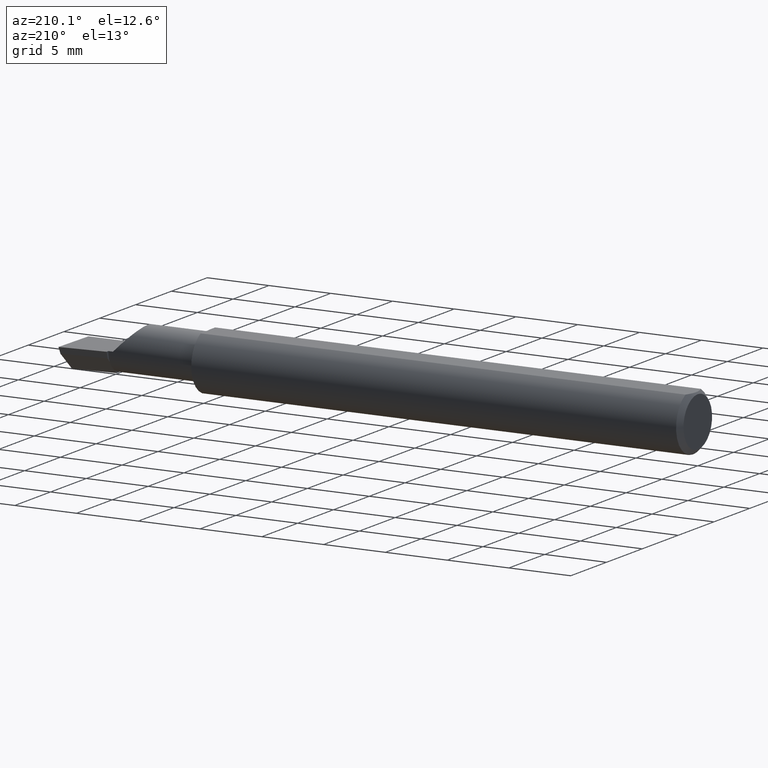
[diagram: clean part render]
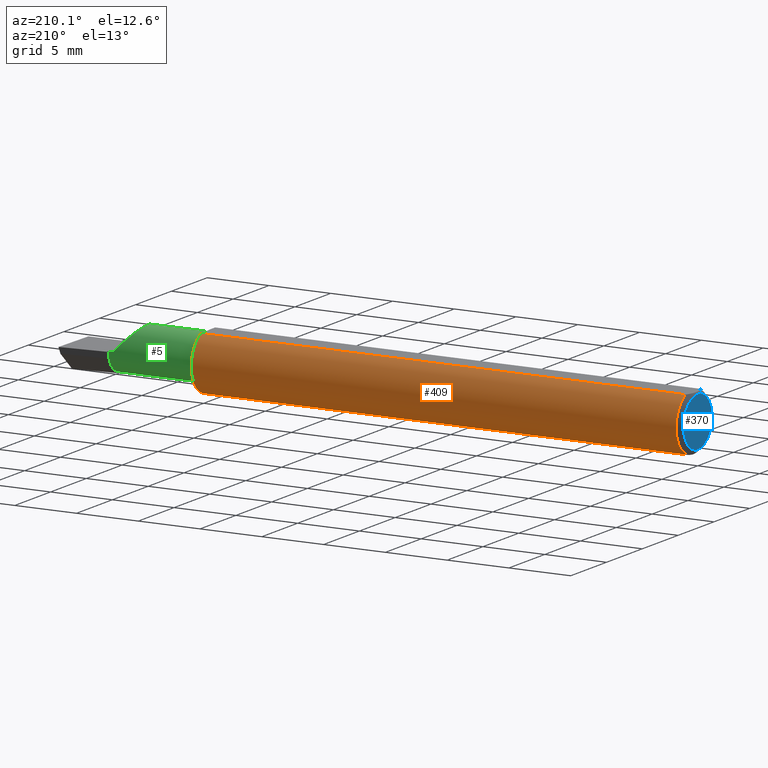
[diagram: same view with three faces highlighted in distinct colors, each labeled with its STEP entity id]
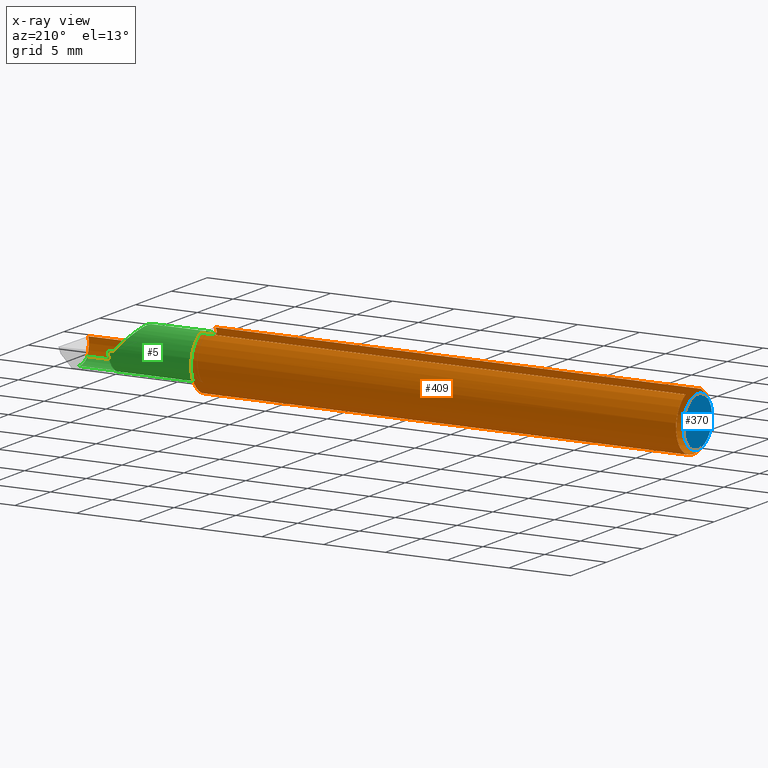
[diagram: x-ray of the same camera — body ghosted, the three highlighted faces saturated]
A machine part, auxiliary view with three faces highlighted in distinct colors.
The next image is the same camera in x-ray (body ghosted, the three faces saturated) — at least one of them is partly hidden behind the body in this view.
Their STEP definitions:

[orange] entity #409 — the highlighted cylindrical surface (edge-blend (fillet) strip) has radius 2.3774 mm, axis along (-1, -0, -0).
#1 = VERTEX_POINT ( 'NONE', #189 ) ;
#2 = CARTESIAN_POINT ( 'NONE',  ( 1.559999999999999831, -0.008104918032786992757, -0.09324843325054746335 ) ) ;
#4 = DIRECTION ( 'NONE',  ( -1.000000000000000000, -0.0000000000000000000, -0.0000000000000000000 ) ) ;
#6 = CARTESIAN_POINT ( 'NONE',  ( 1.989680968235101988, -0.07646557377049184590, -0.05398125626501730501 ) ) ;
#9 = CIRCLE ( 'NONE', #12, 0.09360000000000001652 ) ;
#10 = CARTESIAN_POINT ( 'NONE',  ( 1.559999999999999831, 0.04209513035969836975, 0.08360000000000000764 ) ) ;
#11 = VERTEX_POINT ( 'NONE', #61 ) ;
#12 = AXIS2_PLACEMENT_3D ( 'NONE', #583, #357, #404 ) ;
#19 = DIRECTION ( 'NONE',  ( 0.0000000000000000000, 0.0000000000000000000, 1.000000000000000000 ) ) ;
#22 = CARTESIAN_POINT ( 'NONE',  ( 1.840000000000000080, -0.09360000000000005815, 1.959434878635762025E-17 ) ) ;
#29 = EDGE_CURVE ( 'NONE', #273, #44, #496, .T. ) ;
#31 = CARTESIAN_POINT ( 'NONE',  ( 0.01499999999999999598, 0.04209513035969837669, 0.08360000000000000764 ) ) ;
#44 = VERTEX_POINT ( 'NONE', #94 ) ;
#48 = DIRECTION ( 'NONE',  ( 1.000000000000000000, 4.268512490100411279E-18, 0.0000000000000000000 ) ) ;
#49 = LINE ( 'NONE', #63, #522 ) ;
#51 = CARTESIAN_POINT ( 'NONE',  ( 1.584999999999999964, -0.07646557377049209570, -0.05398125626501705521 ) ) ;
#61 = CARTESIAN_POINT ( 'NONE',  ( 1.840000000000000080, -0.09360000000000005815, 1.959434878635762025E-17 ) ) ;
#63 = CARTESIAN_POINT ( 'NONE',  ( 5.659797890829555466E-31, -0.09359999999999998876, 1.030335658007946046E-15 ) ) ;
#71 = EDGE_CURVE ( 'NONE', #356, #245, #589, .T. ) ;
#75 = DIRECTION ( 'NONE',  ( 1.000000000000000000, 4.268512490100411279E-18, 0.0000000000000000000 ) ) ;
#76 = CARTESIAN_POINT ( 'NONE',  ( 1.562801882726447822, -0.04209513036031876931, 0.08360000000000000764 ) ) ;
#89 =( BOUNDED_CURVE ( )  B_SPLINE_CURVE ( 3, ( #22, #438, #162, #391 ),
 .UNSPECIFIED., .F., .T. ) 
 B_SPLINE_CURVE_WITH_KNOTS ( ( 4, 4 ),
 ( 4.712388980384689674, 5.327100436569646824 ),
 .UNSPECIFIED. ) 
 CURVE ( )  GEOMETRIC_REPRESENTATION_ITEM ( )  RATIONAL_B_SPLINE_CURVE ( ( 1.000000000000000000, 0.9687579316594155943, 0.9687579316594155943, 1.000000000000000000 ) ) 
 REPRESENTATION_ITEM ( '' )  );
#93 = CARTESIAN_POINT ( 'NONE',  ( 1.572379481194433826, -0.06851133057105313062, -0.06386523205972817474 ) ) ;
#94 = CARTESIAN_POINT ( 'NONE',  ( 0.01499999999999999944, -0.04209513035969835587, 0.08360000000000000764 ) ) ;
#96 = CARTESIAN_POINT ( 'NONE',  ( 1.568064680686317880, -0.06127374973417910181, -0.07108395546218128358 ) ) ;
#98 = B_SPLINE_CURVE_WITH_KNOTS ( 'NONE', 3,
 ( #51, #237, #595, #278, #141, #418, #93, #96, #371, #462, #236, #365, #274, #2 ),
 .UNSPECIFIED., .F., .F.,
 ( 4, 2, 2, 2, 2, 2, 4 ),
 ( 1.959158530842256095E-07, 0.0001424059935984817464, 0.0002846160713438792775, 0.0005690362268346746107, 0.001137876537816257146, 0.001706716848797839355, 0.002275557159779421131 ),
 .UNSPECIFIED. ) ;
#103 = CARTESIAN_POINT ( 'NONE',  ( 1.719999999999999973, -0.07646557377049184590, -0.05398125626501730501 ) ) ;
#105 = VERTEX_POINT ( 'NONE', #330 ) ;
#107 = DIRECTION ( 'NONE',  ( -1.000000000000000000, -0.0000000000000000000, -0.0000000000000000000 ) ) ;
#110 = ORIENTED_EDGE ( 'NONE', *, *, #344, .T. ) ;
#116 = CARTESIAN_POINT ( 'NONE',  ( 1.562801882726447822, -0.04209513036031876931, 0.08360000000000000764 ) ) ;
#135 = DIRECTION ( 'NONE',  ( 0.0000000000000000000, 1.000000000000000000, 0.0000000000000000000 ) ) ;
#138 = DIRECTION ( 'NONE',  ( -1.000000000000000000, -0.0000000000000000000, -0.0000000000000000000 ) ) ;
#141 = CARTESIAN_POINT ( 'NONE',  ( 1.577244873747906340, -0.07364233512257564729, -0.05779374943917678364 ) ) ;
#142 = DIRECTION ( 'NONE',  ( 0.0000000000000000000, 0.0000000000000000000, 1.000000000000000000 ) ) ;
#143 = CARTESIAN_POINT ( 'NONE',  ( 1.995862624392067852, -0.09360000000000009979, -6.605666309584449409E-17 ) ) ;
#149 = EDGE_LOOP ( 'NONE', ( #223, #432, #110, #258, #202, #205, #297, #209, #384, #383, #348, #215 ) ) ;
#159 = CARTESIAN_POINT ( 'NONE',  ( 1.566280435687897876, -0.05700135229382548296, 0.07471156184488422780 ) ) ;
#161 = CARTESIAN_POINT ( 'NONE',  ( 1.564271705382763944, -0.04994636227297241660, 0.07964666709476363182 ) ) ;
#162 = CARTESIAN_POINT ( 'NONE',  ( 1.801938678439108932, -0.08770433171880961942, 0.03806132156089080121 ) ) ;
#168 = VECTOR ( 'NONE', #269, 39.37007874015748143 ) ;
#189 = CARTESIAN_POINT ( 'NONE',  ( 1.584999999999999964, -0.07646557377049204018, 0.05398125626501712460 ) ) ;
#190 = CARTESIAN_POINT ( 'NONE',  ( 0.0000000000000000000, 0.04209513035969837669, 0.08360000000000000764 ) ) ;
#202 = ORIENTED_EDGE ( 'NONE', *, *, #488, .F. ) ;
#204 = VERTEX_POINT ( 'NONE', #31 ) ;
#205 = ORIENTED_EDGE ( 'NONE', *, *, #586, .F. ) ;
#209 = ORIENTED_EDGE ( 'NONE', *, *, #29, .F. ) ;
#215 = ORIENTED_EDGE ( 'NONE', *, *, #358, .F. ) ;
#223 = ORIENTED_EDGE ( 'NONE', *, *, #71, .F. ) ;
#236 = CARTESIAN_POINT ( 'NONE',  ( 1.561756004422870880, -0.03669390866074716956, -0.08642009587044903463 ) ) ;
#237 = CARTESIAN_POINT ( 'NONE',  ( 1.583095068269286587, -0.07646557377049204018, -0.05398125626501708990 ) ) ;
#245 = VERTEX_POINT ( 'NONE', #489 ) ;
#247 = CARTESIAN_POINT ( 'NONE',  ( 1.576159648777483824, -0.07275446879445283954, 0.05891786234966332053 ) ) ;
#252 = EDGE_CURVE ( 'NONE', #204, #273, #9, .T. ) ;
#255 = CYLINDRICAL_SURFACE ( 'NONE', #528, 0.09360000000000001652 ) ;
#258 = ORIENTED_EDGE ( 'NONE', *, *, #562, .T. ) ;
#261 = LINE ( 'NONE', #190, #311 ) ;
#269 = DIRECTION ( 'NONE',  ( -1.000000000000000000, -0.0000000000000000000, -0.0000000000000000000 ) ) ;
#273 = VERTEX_POINT ( 'NONE', #591 ) ;
#274 = CARTESIAN_POINT ( 'NONE',  ( 1.559999999999993392, -0.01550498344099972454, -0.09260523827686173437 ) ) ;
#278 = CARTESIAN_POINT ( 'NONE',  ( 1.578436874164509174, -0.07452398798010725911, -0.05664421274495013564 ) ) ;
#297 = ORIENTED_EDGE ( 'NONE', *, *, #327, .T. ) ;
#298 = VECTOR ( 'NONE', #75, 39.37007874015748143 ) ;
#303 = CARTESIAN_POINT ( 'NONE',  ( 1.786018743734982150, -0.07646557377049187365, 0.05398125626501727031 ) ) ;
#304 = CARTESIAN_POINT ( 'NONE',  ( 1.580716106491990347, -0.07573797007891094890, 0.05501896193679951808 ) ) ;
#311 = VECTOR ( 'NONE', #510, 39.37007874015748143 ) ;
#321 = CARTESIAN_POINT ( 'NONE',  ( 1.559999999999999831, 0.0000000000000000000, 0.0000000000000000000 ) ) ;
#327 = EDGE_CURVE ( 'NONE', #563, #44, #342, .T. ) ;
#330 = CARTESIAN_POINT ( 'NONE',  ( 1.559999999999999831, -0.008104918032786992757, -0.09324843325054746335 ) ) ;
#342 = LINE ( 'NONE', #456, #168 ) ;
#344 = EDGE_CURVE ( 'NONE', #364, #11, #49, .T. ) ;
#348 = ORIENTED_EDGE ( 'NONE', *, *, #377, .F. ) ;
#352 = CARTESIAN_POINT ( 'NONE',  ( 1.572663484135164103, -0.06910045470751306762, 0.06324836830213459438 ) ) ;
#356 = VERTEX_POINT ( 'NONE', #6 ) ;
#357 = DIRECTION ( 'NONE',  ( -1.000000000000000000, -0.0000000000000000000, -0.0000000000000000000 ) ) ;
#358 = EDGE_CURVE ( 'NONE', #245, #105, #98, .T. ) ;
#364 = VERTEX_POINT ( 'NONE', #143 ) ;
#365 = CARTESIAN_POINT ( 'NONE',  ( 1.560329054248859260, -0.02276897781908348781, -0.09108484809305519847 ) ) ;
#368 = CARTESIAN_POINT ( 'NONE',  ( 0.01499999999999999598, 0.0000000000000000000, 0.0000000000000000000 ) ) ;
#371 = CARTESIAN_POINT ( 'NONE',  ( 1.566019021117886156, -0.05561872204144571036, -0.07562530238090231505 ) ) ;
#377 = EDGE_CURVE ( 'NONE', #105, #406, #509, .T. ) ;
#378 = B_SPLINE_CURVE_WITH_KNOTS ( 'NONE', 3,
 ( #116, #161, #159, #531, #352, #247, #581, #304, #493, #458 ),
 .UNSPECIFIED., .F., .F.,
 ( 4, 2, 2, 2, 4 ),
 ( 4.457974472501381848E-07, 0.0006718060699091158751, 0.001007486206140048536, 0.001175326274255520179, 0.001343166342370992038 ),
 .UNSPECIFIED. ) ;
#379 = CARTESIAN_POINT ( 'NONE',  ( 0.0000000000000000000, 0.0000000000000000000, 0.0000000000000000000 ) ) ;
#383 = ORIENTED_EDGE ( 'NONE', *, *, #389, .T. ) ;
#384 = ORIENTED_EDGE ( 'NONE', *, *, #252, .F. ) ;
#385 = CARTESIAN_POINT ( 'NONE',  ( 1.993469067315748022, -0.09360000000000003040, -0.01948727793214144466 ) ) ;
#389 = EDGE_CURVE ( 'NONE', #204, #406, #261, .T. ) ;
#391 = CARTESIAN_POINT ( 'NONE',  ( 1.786018743734982150, -0.07646557377049187365, 0.05398125626501727031 ) ) ;
#392 = AXIS2_PLACEMENT_3D ( 'NONE', #321, #48, #135 ) ;
#396 = CARTESIAN_POINT ( 'NONE',  ( 1.719999999999999973, -0.07646557377049184590, 0.05398125626501730501 ) ) ;
#401 = EDGE_CURVE ( 'NONE', #356, #364, #572, .T. ) ;
#404 = DIRECTION ( 'NONE',  ( 0.0000000000000000000, 0.0000000000000000000, 1.000000000000000000 ) ) ;
#406 = VERTEX_POINT ( 'NONE', #10 ) ;
#409 = ADVANCED_FACE ( 'NONE', ( #486 ), #255, .T. ) ;
#415 = AXIS2_PLACEMENT_3D ( 'NONE', #368, #4, #142 ) ;
#418 = CARTESIAN_POINT ( 'NONE',  ( 1.574015914171515762, -0.07074360550885047672, -0.06136535069389147806 ) ) ;
#430 = VECTOR ( 'NONE', #569, 39.37007874015748143 ) ;
#432 = ORIENTED_EDGE ( 'NONE', *, *, #401, .T. ) ;
#438 = CARTESIAN_POINT ( 'NONE',  ( 1.820512722067858524, -0.09360000000000003040, 0.01948727793214133017 ) ) ;
#456 = CARTESIAN_POINT ( 'NONE',  ( 0.0000000000000000000, -0.04209513035969835587, 0.08360000000000000764 ) ) ;
#458 = CARTESIAN_POINT ( 'NONE',  ( 1.584999999999999964, -0.07646557377049204018, 0.05398125626501712460 ) ) ;
#460 = CARTESIAN_POINT ( 'NONE',  ( 1.991342063257270034, -0.08770433171880959167, -0.03806132156089091223 ) ) ;
#462 = CARTESIAN_POINT ( 'NONE',  ( 1.562866246175462992, -0.04341922408232365416, -0.08323100132652182237 ) ) ;
#469 = CARTESIAN_POINT ( 'NONE',  ( 1.989680968235101988, -0.07646557377049184590, -0.05398125626501730501 ) ) ;
#486 = FACE_OUTER_BOUND ( 'NONE', #149, .T. ) ;
#488 = EDGE_CURVE ( 'NONE', #1, #577, #536, .T. ) ;
#489 = CARTESIAN_POINT ( 'NONE',  ( 1.584999999999999964, -0.07646557377049209570, -0.05398125626501705521 ) ) ;
#493 = CARTESIAN_POINT ( 'NONE',  ( 1.582734503266369108, -0.07646557377049206794, 0.05398125626501702745 ) ) ;
#496 = CIRCLE ( 'NONE', #415, 0.09360000000000001652 ) ;
#509 = CIRCLE ( 'NONE', #392, 0.09360000000000001652 ) ;
#510 = DIRECTION ( 'NONE',  ( 1.000000000000000000, 0.0000000000000000000, 0.0000000000000000000 ) ) ;
#522 = VECTOR ( 'NONE', #138, 39.37007874015748143 ) ;
#524 = CARTESIAN_POINT ( 'NONE',  ( 1.995862624392067852, -0.09360000000000009979, -6.605666309584449409E-17 ) ) ;
#528 = AXIS2_PLACEMENT_3D ( 'NONE', #379, #107, #19 ) ;
#531 = CARTESIAN_POINT ( 'NONE',  ( 1.570886223621647648, -0.06626224018846509078, 0.06624030822967881538 ) ) ;
#536 = LINE ( 'NONE', #396, #298 ) ;
#562 = EDGE_CURVE ( 'NONE', #11, #577, #89, .T. ) ;
#563 = VERTEX_POINT ( 'NONE', #76 ) ;
#569 = DIRECTION ( 'NONE',  ( -1.000000000000000000, -4.268512490100411279E-18, -0.0000000000000000000 ) ) ;
#572 =( BOUNDED_CURVE ( )  B_SPLINE_CURVE ( 3, ( #469, #460, #385, #524 ),
 .UNSPECIFIED., .F., .F. ) 
 B_SPLINE_CURVE_WITH_KNOTS ( ( 4, 4 ),
 ( 0.7460354263298282218, 1.360746882514785705 ),
 .UNSPECIFIED. ) 
 CURVE ( )  GEOMETRIC_REPRESENTATION_ITEM ( )  RATIONAL_B_SPLINE_CURVE ( ( 1.000000000000000000, 0.9687579316594154832, 0.9687579316594154832, 1.000000000000000000 ) ) 
 REPRESENTATION_ITEM ( '' )  );
#577 = VERTEX_POINT ( 'NONE', #303 ) ;
#581 = CARTESIAN_POINT ( 'NONE',  ( 1.577475890146723403, -0.07388913376859283788, 0.05747801488572824163 ) ) ;
#583 = CARTESIAN_POINT ( 'NONE',  ( 0.01499999999999999598, 0.0000000000000000000, 0.0000000000000000000 ) ) ;
#586 = EDGE_CURVE ( 'NONE', #563, #1, #378, .T. ) ;
#589 = LINE ( 'NONE', #103, #430 ) ;
#591 = CARTESIAN_POINT ( 'NONE',  ( 0.01499999999999999598, 0.0000000000000000000, -0.09360000000000001652 ) ) ;
#595 = CARTESIAN_POINT ( 'NONE',  ( 1.581350203328816262, -0.07594758393974096466, -0.05472071011664911971 ) ) ;

[blue] entity #370 — the highlighted planar face has unit normal (1, 0, 0).
#36 = CIRCLE ( 'NONE', #440, 0.07859999999999965625 ) ;
#68 = AXIS2_PLACEMENT_3D ( 'NONE', #331, #464, #376 ) ;
#146 = DIRECTION ( 'NONE',  ( -1.000000000000000000, -0.0000000000000000000, -0.0000000000000000000 ) ) ;
#151 = EDGE_LOOP ( 'NONE', ( #339, #216 ) ) ;
#195 = CARTESIAN_POINT ( 'NONE',  ( 0.0000000000000000000, 0.0000000000000000000, 0.0000000000000000000 ) ) ;
#206 = DIRECTION ( 'NONE',  ( 0.0000000000000000000, 0.0000000000000000000, 1.000000000000000000 ) ) ;
#207 = DIRECTION ( 'NONE',  ( -1.000000000000000000, -0.0000000000000000000, -0.0000000000000000000 ) ) ;
#214 = FACE_OUTER_BOUND ( 'NONE', #151, .T. ) ;
#216 = ORIENTED_EDGE ( 'NONE', *, *, #361, .T. ) ;
#226 = CIRCLE ( 'NONE', #341, 0.07859999999999965625 ) ;
#279 = DIRECTION ( 'NONE',  ( 0.0000000000000000000, 0.0000000000000000000, 1.000000000000000000 ) ) ;
#295 = CARTESIAN_POINT ( 'NONE',  ( 0.0000000000000000000, 0.0000000000000000000, 0.0000000000000000000 ) ) ;
#331 = CARTESIAN_POINT ( 'NONE',  ( 0.0000000000000000000, 0.0000000000000000000, 0.0000000000000000000 ) ) ;
#339 = ORIENTED_EDGE ( 'NONE', *, *, #520, .T. ) ;
#341 = AXIS2_PLACEMENT_3D ( 'NONE', #295, #207, #206 ) ;
#361 = EDGE_CURVE ( 'NONE', #497, #578, #36, .T. ) ;
#370 = ADVANCED_FACE ( 'NONE', ( #214 ), #559, .F. ) ;
#376 = DIRECTION ( 'NONE',  ( 0.0000000000000000000, 0.0000000000000000000, -1.000000000000000000 ) ) ;
#388 = CARTESIAN_POINT ( 'NONE',  ( 0.0000000000000000000, 1.054420894065869177E-17, 0.07859999999999965625 ) ) ;
#433 = CARTESIAN_POINT ( 'NONE',  ( 0.0000000000000000000, 0.0000000000000000000, -0.07859999999999965625 ) ) ;
#440 = AXIS2_PLACEMENT_3D ( 'NONE', #195, #146, #279 ) ;
#464 = DIRECTION ( 'NONE',  ( 1.000000000000000000, 0.0000000000000000000, 0.0000000000000000000 ) ) ;
#497 = VERTEX_POINT ( 'NONE', #388 ) ;
#520 = EDGE_CURVE ( 'NONE', #578, #497, #226, .T. ) ;
#559 = PLANE ( 'NONE',  #68 ) ;
#578 = VERTEX_POINT ( 'NONE', #433 ) ;

[green] entity #5 — the highlighted cylindrical surface (edge-blend (fillet) strip) has radius 1.8009 mm, axis along (-1, -0, -0).
#1 = VERTEX_POINT ( 'NONE', #189 ) ;
#5 = ADVANCED_FACE ( 'NONE', ( #513 ), #301, .T. ) ;
#6 = CARTESIAN_POINT ( 'NONE',  ( 1.989680968235101988, -0.07646557377049184590, -0.05398125626501730501 ) ) ;
#15 = DIRECTION ( 'NONE',  ( 1.000000000000000000, 4.268512490100411279E-18, 0.0000000000000000000 ) ) ;
#20 = VERTEX_POINT ( 'NONE', #417 ) ;
#21 = VECTOR ( 'NONE', #428, 39.37007874015748143 ) ;
#41 = EDGE_CURVE ( 'NONE', #577, #20, #498, .T. ) ;
#57 = DIRECTION ( 'NONE',  ( -1.000000000000000000, -4.268512490100411279E-18, -0.0000000000000000000 ) ) ;
#65 = CARTESIAN_POINT ( 'NONE',  ( 1.854999999999999982, -0.03049999999999999586, 0.0000000000000000000 ) ) ;
#69 = CARTESIAN_POINT ( 'NONE',  ( -3.026375355475531123E-19, 0.04039999999999997066, 1.030335658007946046E-15 ) ) ;
#71 = EDGE_CURVE ( 'NONE', #356, #245, #589, .T. ) ;
#75 = DIRECTION ( 'NONE',  ( 1.000000000000000000, 4.268512490100411279E-18, 0.0000000000000000000 ) ) ;
#77 = CARTESIAN_POINT ( 'NONE',  ( 1.854999999999999982, -0.03049999999999999586, -0.07090000000000000469 ) ) ;
#92 = CARTESIAN_POINT ( 'NONE',  ( 1.988806546520622609, -0.03049999999999999586, -0.07090000000000000469 ) ) ;
#102 = VERTEX_POINT ( 'NONE', #287 ) ;
#103 = CARTESIAN_POINT ( 'NONE',  ( 1.719999999999999973, -0.07646557377049184590, -0.05398125626501730501 ) ) ;
#120 = AXIS2_PLACEMENT_3D ( 'NONE', #508, #551, #556 ) ;
#121 = ORIENTED_EDGE ( 'NONE', *, *, #390, .T. ) ;
#128 = AXIS2_PLACEMENT_3D ( 'NONE', #185, #515, #285 ) ;
#166 = ORIENTED_EDGE ( 'NONE', *, *, #355, .T. ) ;
#179 = CARTESIAN_POINT ( 'NONE',  ( 1.988664666329833741, -0.06350290078668613392, -0.06501910055627768692 ) ) ;
#183 = CARTESIAN_POINT ( 'NONE',  ( 0.0000000000000000000, -0.03050000000000000627, 0.0000000000000000000 ) ) ;
#185 = CARTESIAN_POINT ( 'NONE',  ( 1.854999999999999982, -0.03049999999999999586, 0.0000000000000000000 ) ) ;
#189 = CARTESIAN_POINT ( 'NONE',  ( 1.584999999999999964, -0.07646557377049204018, 0.05398125626501712460 ) ) ;
#203 =( BOUNDED_CURVE ( )  B_SPLINE_CURVE ( 3, ( #446, #179, #502, #92 ),
 .UNSPECIFIED., .F., .T. ) 
 B_SPLINE_CURVE_WITH_KNOTS ( ( 4, 4 ),
 ( 5.787864769132275988, 6.493234751459696419 ),
 .UNSPECIFIED. ) 
 CURVE ( )  GEOMETRIC_REPRESENTATION_ITEM ( )  RATIONAL_B_SPLINE_CURVE ( ( 1.000000000000000000, 0.9589657668801497836, 0.9589657668801497836, 1.000000000000000000 ) ) 
 REPRESENTATION_ITEM ( '' )  );
#210 = EDGE_LOOP ( 'NONE', ( #244, #373, #468, #349, #282, #518, #166, #366, #121, #354 ) ) ;
#217 = CIRCLE ( 'NONE', #128, 0.07089999999999999081 ) ;
#219 = AXIS2_PLACEMENT_3D ( 'NONE', #183, #57, #419 ) ;
#235 = VERTEX_POINT ( 'NONE', #77 ) ;
#238 = CARTESIAN_POINT ( 'NONE',  ( 1.786018743734982150, -0.07646557377049187365, 0.05398125626501727031 ) ) ;
#243 = DIRECTION ( 'NONE',  ( 0.0000000000000000000, -1.000000000000000000, 0.0000000000000000000 ) ) ;
#244 = ORIENTED_EDGE ( 'NONE', *, *, #323, .F. ) ;
#245 = VERTEX_POINT ( 'NONE', #489 ) ;
#257 = CARTESIAN_POINT ( 'NONE',  ( 1.854999999999999982, 0.03289115998609076080, -0.03175485530777679560 ) ) ;
#272 = CARTESIAN_POINT ( 'NONE',  ( 1.584999999999999964, -0.03049999999999999586, 0.0000000000000000000 ) ) ;
#276 = CIRCLE ( 'NONE', #307, 0.07089999999999997693 ) ;
#282 = ORIENTED_EDGE ( 'NONE', *, *, #41, .T. ) ;
#283 = CARTESIAN_POINT ( 'NONE',  ( 1.769987205483423143, 0.04039999999999997760, 0.07001279451657600739 ) ) ;
#285 = DIRECTION ( 'NONE',  ( 0.0000000000000000000, -1.000000000000000000, 0.0000000000000000000 ) ) ;
#287 = CARTESIAN_POINT ( 'NONE',  ( 1.988806546520622609, -0.03049999999999999586, -0.07090000000000000469 ) ) ;
#298 = VECTOR ( 'NONE', #75, 39.37007874015748143 ) ;
#301 = CYLINDRICAL_SURFACE ( 'NONE', #219, 0.07089999999999999081 ) ;
#303 = CARTESIAN_POINT ( 'NONE',  ( 1.786018743734982150, -0.07646557377049187365, 0.05398125626501727031 ) ) ;
#307 = AXIS2_PLACEMENT_3D ( 'NONE', #65, #15, #243 ) ;
#323 = EDGE_CURVE ( 'NONE', #356, #102, #203, .T. ) ;
#343 = CARTESIAN_POINT ( 'NONE',  ( 1.854999999999999982, 0.04039999999999999841, 1.030335658007946243E-15 ) ) ;
#349 = ORIENTED_EDGE ( 'NONE', *, *, #488, .T. ) ;
#351 = CIRCLE ( 'NONE', #120, 0.07089999999999999081 ) ;
#354 = ORIENTED_EDGE ( 'NONE', *, *, #442, .F. ) ;
#355 = EDGE_CURVE ( 'NONE', #505, #533, #217, .T. ) ;
#356 = VERTEX_POINT ( 'NONE', #6 ) ;
#366 = ORIENTED_EDGE ( 'NONE', *, *, #411, .F. ) ;
#373 = ORIENTED_EDGE ( 'NONE', *, *, #71, .T. ) ;
#375 = CARTESIAN_POINT ( 'NONE',  ( 1.840000000000000080, 0.04039999999999989433, 1.959434878635762025E-17 ) ) ;
#381 = AXIS2_PLACEMENT_3D ( 'NONE', #272, #450, #542 ) ;
#386 = VECTOR ( 'NONE', #478, 39.37007874015748143 ) ;
#390 = EDGE_CURVE ( 'NONE', #512, #235, #351, .T. ) ;
#396 = CARTESIAN_POINT ( 'NONE',  ( 1.719999999999999973, -0.07646557377049184590, 0.05398125626501730501 ) ) ;
#411 = EDGE_CURVE ( 'NONE', #512, #533, #276, .T. ) ;
#417 = CARTESIAN_POINT ( 'NONE',  ( 1.840000000000000080, 0.04039999999999989433, 1.959434878635762025E-17 ) ) ;
#419 = DIRECTION ( 'NONE',  ( 4.268512490100411279E-18, -1.000000000000000000, 0.0000000000000000000 ) ) ;
#427 = CIRCLE ( 'NONE', #381, 0.07089999999999997693 ) ;
#428 = DIRECTION ( 'NONE',  ( -1.000000000000000000, 5.691349986800549142E-18, -0.0000000000000000000 ) ) ;
#430 = VECTOR ( 'NONE', #569, 39.37007874015748143 ) ;
#442 = EDGE_CURVE ( 'NONE', #102, #235, #475, .T. ) ;
#446 = CARTESIAN_POINT ( 'NONE',  ( 1.989680968235101988, -0.07646557377049184590, -0.05398125626501730501 ) ) ;
#450 = DIRECTION ( 'NONE',  ( -1.000000000000000000, -4.268512490100411279E-18, -0.0000000000000000000 ) ) ;
#468 = ORIENTED_EDGE ( 'NONE', *, *, #592, .F. ) ;
#471 = EDGE_CURVE ( 'NONE', #20, #505, #530, .T. ) ;
#475 = LINE ( 'NONE', #517, #21 ) ;
#478 = DIRECTION ( 'NONE',  ( 1.000000000000000000, 4.268512490100411279E-18, 0.0000000000000000000 ) ) ;
#487 = CARTESIAN_POINT ( 'NONE',  ( 1.854999999999999982, 0.003160401389698347125, -0.06240021937689312764 ) ) ;
#488 = EDGE_CURVE ( 'NONE', #1, #577, #536, .T. ) ;
#489 = CARTESIAN_POINT ( 'NONE',  ( 1.584999999999999964, -0.07646557377049209570, -0.05398125626501705521 ) ) ;
#498 =( BOUNDED_CURVE ( )  B_SPLINE_CURVE ( 3, ( #238, #558, #283, #375 ),
 .UNSPECIFIED., .F., .T. ) 
 B_SPLINE_CURVE_WITH_KNOTS ( ( 4, 4 ),
 ( 5.577815324852164025, 7.853981633974482790 ),
 .UNSPECIFIED. ) 
 CURVE ( )  GEOMETRIC_REPRESENTATION_ITEM ( )  RATIONAL_B_SPLINE_CURVE ( ( 1.000000000000000000, 0.6128902971210724582, 0.6128902971210724582, 1.000000000000000000 ) ) 
 REPRESENTATION_ITEM ( '' )  );
#502 = CARTESIAN_POINT ( 'NONE',  ( 1.988360720229886081, -0.04752541915734221495, -0.07089999999999999081 ) ) ;
#505 = VERTEX_POINT ( 'NONE', #343 ) ;
#508 = CARTESIAN_POINT ( 'NONE',  ( 1.854999999999999982, -0.03049999999999999586, 0.0000000000000000000 ) ) ;
#512 = VERTEX_POINT ( 'NONE', #487 ) ;
#513 = FACE_OUTER_BOUND ( 'NONE', #210, .T. ) ;
#515 = DIRECTION ( 'NONE',  ( -1.000000000000000000, -4.268512490100411279E-18, -0.0000000000000000000 ) ) ;
#517 = CARTESIAN_POINT ( 'NONE',  ( 2.000000000000000000, -0.03049999999999999586, -0.07090000000000000469 ) ) ;
#518 = ORIENTED_EDGE ( 'NONE', *, *, #471, .T. ) ;
#530 = LINE ( 'NONE', #69, #386 ) ;
#533 = VERTEX_POINT ( 'NONE', #257 ) ;
#536 = LINE ( 'NONE', #396, #298 ) ;
#542 = DIRECTION ( 'NONE',  ( 0.0000000000000000000, -1.000000000000000000, 0.0000000000000000000 ) ) ;
#551 = DIRECTION ( 'NONE',  ( -1.000000000000000000, -4.268512490100411279E-18, -0.0000000000000000000 ) ) ;
#556 = DIRECTION ( 'NONE',  ( 0.0000000000000000000, -1.000000000000000000, 0.0000000000000000000 ) ) ;
#558 = CARTESIAN_POINT ( 'NONE',  ( 1.740628359091399568, -0.02315981068686312830, 0.09937164090859931798 ) ) ;
#569 = DIRECTION ( 'NONE',  ( -1.000000000000000000, -4.268512490100411279E-18, -0.0000000000000000000 ) ) ;
#577 = VERTEX_POINT ( 'NONE', #303 ) ;
#589 = LINE ( 'NONE', #103, #430 ) ;
#592 = EDGE_CURVE ( 'NONE', #1, #245, #427, .T. ) ;